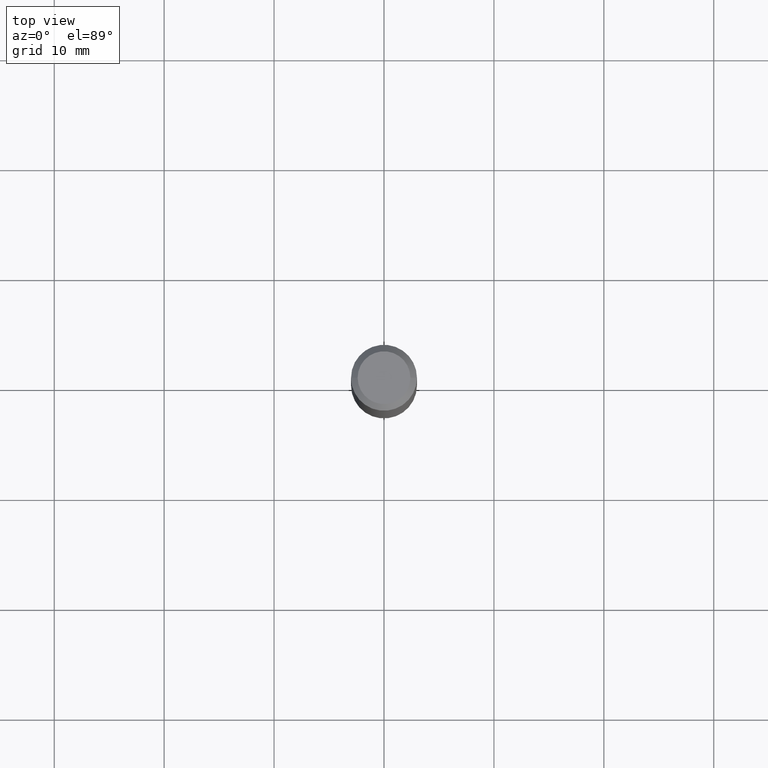
[diagram: clean part render]
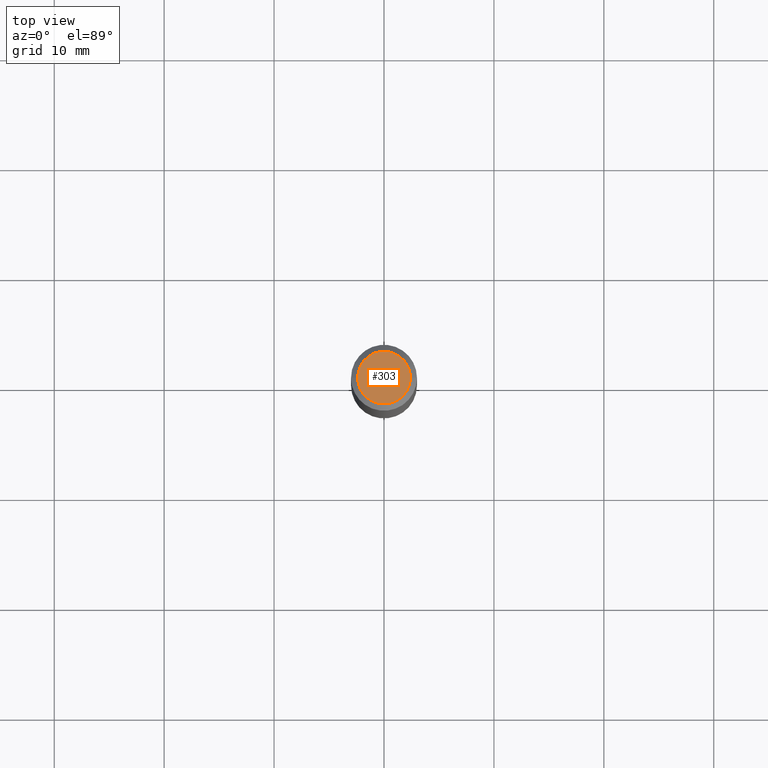
[diagram: same view with one face highlighted and labeled with its STEP entity id]
A machine part, top view. The second image highlights one B-rep face of the part: STEP entity #303.
In plain terms, the highlighted planar face has unit normal (0, -0, -1).
Its self-contained STEP definition (entity closure, byte-faithful):
#33 = AXIS2_PLACEMENT_3D ( 'NONE', #220, #305, #488 ) ;
#52 = VERTEX_POINT ( 'NONE', #443 ) ;
#61 = EDGE_CURVE ( 'NONE', #228, #52, #435, .T. ) ;
#69 = ORIENTED_EDGE ( 'NONE', *, *, #226, .T. ) ;
#107 = DIRECTION ( 'NONE',  ( -1.000000000000000000, 6.982962677686265922E-15, -4.876176775795935793E-29 ) ) ;
#122 = ORIENTED_EDGE ( 'NONE', *, *, #61, .T. ) ;
#124 = AXIS2_PLACEMENT_3D ( 'NONE', #329, #294, #475 ) ;
#182 = CIRCLE ( 'NONE', #33, 0.09447999999999998066 ) ;
#183 = CARTESIAN_POINT ( 'NONE',  ( 2.358133508849003952E-46, -3.366789680499277518E-32, -9.642868896486260050E-18 ) ) ;
#220 = CARTESIAN_POINT ( 'NONE',  ( 4.716267017698007905E-46, -6.733579360998555036E-32, -1.928573779297252010E-17 ) ) ;
#226 = EDGE_CURVE ( 'NONE', #52, #228, #182, .T. ) ;
#228 = VERTEX_POINT ( 'NONE', #455 ) ;
#294 = DIRECTION ( 'NONE',  ( -2.445468806185136597E-29, 3.491481338843145583E-15, 1.000000000000000000 ) ) ;
#303 = ADVANCED_FACE ( 'NONE', ( #374 ), #380, .F. ) ;
#305 = DIRECTION ( 'NONE',  ( -2.445468806185136597E-29, 3.491481338843145583E-15, 1.000000000000000000 ) ) ;
#329 = CARTESIAN_POINT ( 'NONE',  ( 4.716267017698007905E-46, -6.733579360998555036E-32, -1.928573779297252010E-17 ) ) ;
#374 = FACE_OUTER_BOUND ( 'NONE', #462, .T. ) ;
#376 = AXIS2_PLACEMENT_3D ( 'NONE', #183, #489, #107 ) ;
#380 = PLANE ( 'NONE',  #376 ) ;
#435 = CIRCLE ( 'NONE', #124, 0.09447999999999998066 ) ;
#443 = CARTESIAN_POINT ( 'NONE',  ( -0.09447999999999998066, 7.009847083995354710E-16, -1.928573779297727792E-17 ) ) ;
#455 = CARTESIAN_POINT ( 'NONE',  ( 0.09447999999999998066, -7.704367267948738690E-16, -1.928573779296752193E-17 ) ) ;
#462 = EDGE_LOOP ( 'NONE', ( #69, #122 ) ) ;
#475 = DIRECTION ( 'NONE',  ( 1.000000000000000000, -6.982962677686267499E-15, 4.875432709231658792E-29 ) ) ;
#488 = DIRECTION ( 'NONE',  ( 1.000000000000000000, -6.982962677686267499E-15, 4.875432709231658792E-29 ) ) ;
#489 = DIRECTION ( 'NONE',  ( 2.438088387897960049E-29, -3.491481338843145188E-15, -1.000000000000000000 ) ) ;